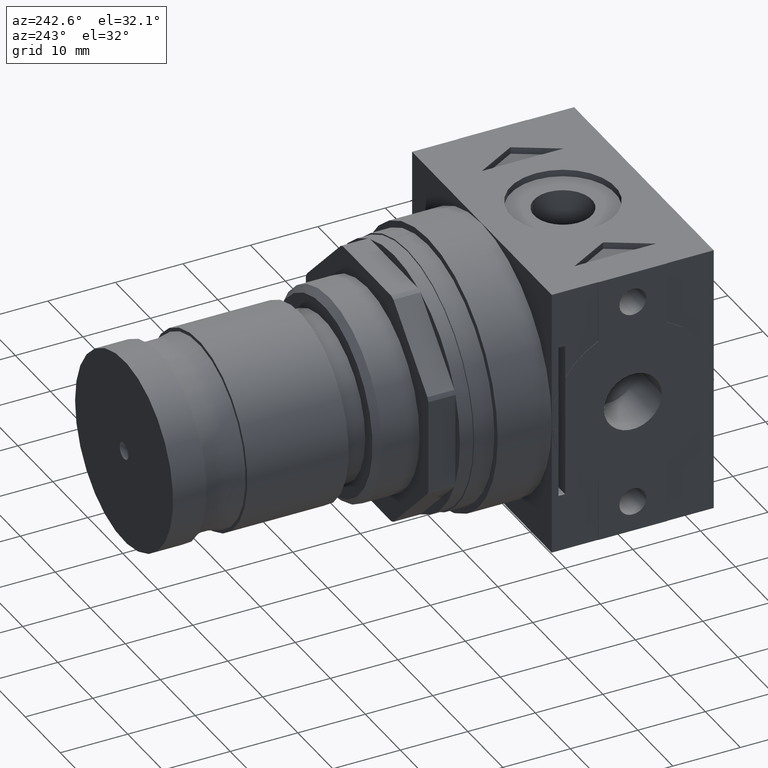
[diagram: clean part render]
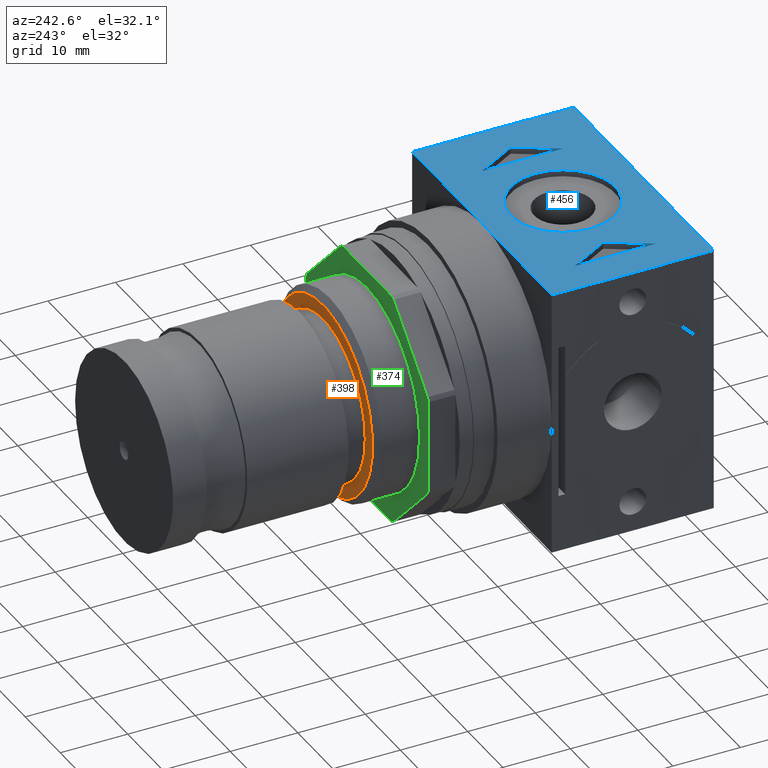
[diagram: same view with three faces highlighted in distinct colors, each labeled with its STEP entity id]
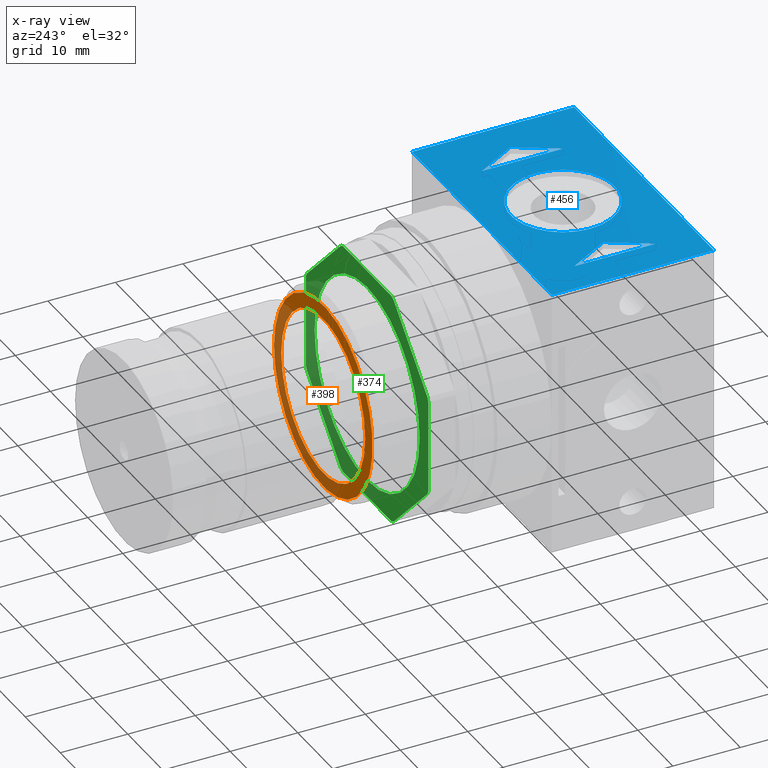
[diagram: x-ray of the same camera — body ghosted, the three highlighted faces saturated]
A machine part, auxiliary view with three faces highlighted in distinct colors.
The next image is the same camera in x-ray (body ghosted, the three faces saturated) — at least one of them is partly hidden behind the body in this view.
Their STEP definitions:

[orange] entity #398 — the highlighted planar face has unit normal (0, -1, 0).
#398 = ADVANCED_FACE( '', ( #818, #819 ), #820, .F. );
#818 = FACE_BOUND( '', #1263, .T. );
#819 = FACE_OUTER_BOUND( '', #1264, .T. );
#820 = PLANE( '', #1265 );
#1263 = EDGE_LOOP( '', ( #2135 ) );
#1264 = EDGE_LOOP( '', ( #2136 ) );
#1265 = AXIS2_PLACEMENT_3D( '', #2137, #2138, #2139 );
#2135 = ORIENTED_EDGE( '', *, *, #2577, .F. );
#2136 = ORIENTED_EDGE( '', *, *, #2758, .T. );
#2137 = CARTESIAN_POINT( '', ( 15.5000000000000, 14.0800000000000, 0.000000000000000 ) );
#2138 = DIRECTION( '', ( -1.00000000000000, 0.000000000000000, 0.000000000000000 ) );
#2139 = DIRECTION( '', ( 0.000000000000000, 0.000000000000000, 1.00000000000000 ) );
#2577 = EDGE_CURVE( '', #3074, #3074, #3075, .T. );
#2758 = EDGE_CURVE( '', #3329, #3329, #3330, .T. );
#3074 = VERTEX_POINT( '', #3726 );
#3075 = CIRCLE( '', #3727, 12.0000000000000 );
#3329 = VERTEX_POINT( '', #4072 );
#3330 = CIRCLE( '', #4073, 14.0800000000000 );
#3726 = CARTESIAN_POINT( '', ( 15.5000000000000, 0.000000000000000, -12.0000000000000 ) );
#3727 = AXIS2_PLACEMENT_3D( '', #4328, #4329, #4330 );
#4072 = CARTESIAN_POINT( '', ( 15.5000000000000, 0.000000000000000, -14.0800000000000 ) );
#4073 = AXIS2_PLACEMENT_3D( '', #4530, #4531, #4532 );
#4328 = CARTESIAN_POINT( '', ( 15.5000000000000, 0.000000000000000, 0.000000000000000 ) );
#4329 = DIRECTION( '', ( 1.00000000000000, 0.000000000000000, -0.000000000000000 ) );
#4330 = DIRECTION( '', ( -0.000000000000000, 0.000000000000000, -1.00000000000000 ) );
#4530 = CARTESIAN_POINT( '', ( 15.5000000000000, 0.000000000000000, 0.000000000000000 ) );
#4531 = DIRECTION( '', ( 1.00000000000000, 0.000000000000000, -0.000000000000000 ) );
#4532 = DIRECTION( '', ( -0.000000000000000, 0.000000000000000, -1.00000000000000 ) );

[blue] entity #456 — the highlighted planar face has unit normal (0, 0, -1).
#456 = ADVANCED_FACE( '', ( #918, #919, #920, #921 ), #922, .F. );
#918 = FACE_BOUND( '', #1363, .T. );
#919 = FACE_BOUND( '', #1364, .T. );
#920 = FACE_BOUND( '', #1365, .T. );
#921 = FACE_OUTER_BOUND( '', #1366, .T. );
#922 = PLANE( '', #1367 );
#1363 = EDGE_LOOP( '', ( #2372, #2373, #2374 ) );
#1364 = EDGE_LOOP( '', ( #2375, #2376, #2377 ) );
#1365 = EDGE_LOOP( '', ( #2378 ) );
#1366 = EDGE_LOOP( '', ( #2379, #2380, #2381, #2382, #2383, #2384, #2385, #2386, #2387, #2388, #2389, #2390 ) );
#1367 = AXIS2_PLACEMENT_3D( '', #2391, #2392, #2393 );
#2372 = ORIENTED_EDGE( '', *, *, #2669, .F. );
#2373 = ORIENTED_EDGE( '', *, *, #2527, .F. );
#2374 = ORIENTED_EDGE( '', *, *, #2710, .F. );
#2375 = ORIENTED_EDGE( '', *, *, #2459, .F. );
#2376 = ORIENTED_EDGE( '', *, *, #2675, .F. );
#2377 = ORIENTED_EDGE( '', *, *, #2499, .F. );
#2378 = ORIENTED_EDGE( '', *, *, #2610, .T. );
#2379 = ORIENTED_EDGE( '', *, *, #2536, .T. );
#2380 = ORIENTED_EDGE( '', *, *, #2477, .F. );
#2381 = ORIENTED_EDGE( '', *, *, #2755, .T. );
#2382 = ORIENTED_EDGE( '', *, *, #2791, .T. );
#2383 = ORIENTED_EDGE( '', *, *, #2542, .T. );
#2384 = ORIENTED_EDGE( '', *, *, #2692, .T. );
#2385 = ORIENTED_EDGE( '', *, *, #2533, .F. );
#2386 = ORIENTED_EDGE( '', *, *, #2608, .T. );
#2387 = ORIENTED_EDGE( '', *, *, #2742, .F. );
#2388 = ORIENTED_EDGE( '', *, *, #2434, .F. );
#2389 = ORIENTED_EDGE( '', *, *, #2704, .F. );
#2390 = ORIENTED_EDGE( '', *, *, #2648, .F. );
#2391 = CARTESIAN_POINT( '', ( 19.9500000000000, 12.0000000000000, 20.0000000000000 ) );
#2392 = DIRECTION( '', ( 0.000000000000000, 0.000000000000000, -1.00000000000000 ) );
#2393 = DIRECTION( '', ( -1.00000000000000, 0.000000000000000, 0.000000000000000 ) );
#2434 = EDGE_CURVE( '', #2836, #2838, #2839, .T. );
#2459 = EDGE_CURVE( '', #2880, #2881, #2882, .T. );
#2477 = EDGE_CURVE( '', #2911, #2913, #2914, .T. );
#2499 = EDGE_CURVE( '', #2881, #2947, #2948, .T. );
#2527 = EDGE_CURVE( '', #2994, #2995, #2996, .T. );
#2533 = EDGE_CURVE( '', #3003, #3005, #3006, .T. );
#2536 = EDGE_CURVE( '', #3009, #2913, #3010, .T. );
#2542 = EDGE_CURVE( '', #3018, #3019, #3020, .T. );
#2608 = EDGE_CURVE( '', #3003, #3127, #3129, .T. );
#2610 = EDGE_CURVE( '', #3131, #3131, #3132, .T. );
#2648 = EDGE_CURVE( '', #3009, #3184, #3185, .T. );
#2669 = EDGE_CURVE( '', #2995, #3216, #3217, .T. );
#2675 = EDGE_CURVE( '', #2947, #2880, #3223, .T. );
#2692 = EDGE_CURVE( '', #3019, #3005, #3247, .T. );
#2704 = EDGE_CURVE( '', #3184, #2836, #3262, .T. );
#2710 = EDGE_CURVE( '', #3216, #2994, #3268, .T. );
#2742 = EDGE_CURVE( '', #2838, #3127, #3310, .T. );
#2755 = EDGE_CURVE( '', #2911, #3324, #3326, .T. );
#2791 = EDGE_CURVE( '', #3324, #3018, #3366, .T. );
#2836 = VERTEX_POINT( '', #3414 );
#2838 = VERTEX_POINT( '', #3417 );
#2839 = LINE( '', #3418, #3419 );
#2880 = VERTEX_POINT( '', #3471 );
#2881 = VERTEX_POINT( '', #3472 );
#2882 = LINE( '', #3473, #3474 );
#2911 = VERTEX_POINT( '', #3515 );
#2913 = VERTEX_POINT( '', #3518 );
#2914 = LINE( '', #3519, #3520 );
#2947 = VERTEX_POINT( '', #3559 );
#2948 = LINE( '', #3560, #3561 );
#2994 = VERTEX_POINT( '', #3623 );
#2995 = VERTEX_POINT( '', #3624 );
#2996 = LINE( '', #3625, #3626 );
#3003 = VERTEX_POINT( '', #3636 );
#3005 = VERTEX_POINT( '', #3639 );
#3006 = LINE( '', #3640, #3641 );
#3009 = VERTEX_POINT( '', #3645 );
#3010 = LINE( '', #3646, #3647 );
#3018 = VERTEX_POINT( '', #3657 );
#3019 = VERTEX_POINT( '', #3658 );
#3020 = LINE( '', #3659, #3660 );
#3127 = VERTEX_POINT( '', #3791 );
#3129 = LINE( '', #3794, #3795 );
#3131 = VERTEX_POINT( '', #3797 );
#3132 = CIRCLE( '', #3798, 7.75000000000000 );
#3184 = VERTEX_POINT( '', #3869 );
#3185 = LINE( '', #3870, #3871 );
#3216 = VERTEX_POINT( '', #3910 );
#3217 = LINE( '', #3911, #3912 );
#3223 = LINE( '', #3921, #3922 );
#3247 = LINE( '', #3956, #3957 );
#3262 = LINE( '', #3978, #3979 );
#3268 = LINE( '', #3986, #3987 );
#3310 = LINE( '', #4046, #4047 );
#3324 = VERTEX_POINT( '', #4065 );
#3326 = LINE( '', #4068, #4069 );
#3366 = LINE( '', #4117, #4118 );
#3414 = CARTESIAN_POINT( '', ( 19.9500000000000, -5.10000000000000, 20.0000000000000 ) );
#3417 = CARTESIAN_POINT( '', ( 19.9500000000000, -12.0000000000000, 20.0000000000000 ) );
#3418 = CARTESIAN_POINT( '', ( 19.9500000000000, 12.0000000000000, 20.0000000000000 ) );
#3419 = VECTOR( '', #4159, 1000.00000000000 );
#3471 = CARTESIAN_POINT( '', ( -15.0000000000000, 6.06217782649107, 20.0000000000000 ) );
#3472 = CARTESIAN_POINT( '', ( -15.0000000000000, -6.06217782649107, 20.0000000000000 ) );
#3473 = CARTESIAN_POINT( '', ( -15.0000000000000, 6.06217782649107, 20.0000000000000 ) );
#3474 = VECTOR( '', #4192, 1000.00000000000 );
#3515 = CARTESIAN_POINT( '', ( 19.9500000000000, 12.0000000000000, 20.0000000000000 ) );
#3518 = CARTESIAN_POINT( '', ( 19.9500000000000, 5.10000000000000, 20.0000000000000 ) );
#3519 = CARTESIAN_POINT( '', ( 19.9500000000000, 12.0000000000000, 20.0000000000000 ) );
#3520 = VECTOR( '', #4209, 1000.00000000000 );
#3559 = CARTESIAN_POINT( '', ( -11.5000000000000, 0.000000000000000, 20.0000000000000 ) );
#3560 = CARTESIAN_POINT( '', ( -15.0000000000000, -6.06217782649107, 20.0000000000000 ) );
#3561 = VECTOR( '', #4240, 1000.00000000000 );
#3623 = CARTESIAN_POINT( '', ( 15.0000000000000, 0.000000000000000, 20.0000000000000 ) );
#3624 = CARTESIAN_POINT( '', ( 11.5000000000000, 6.06217782649107, 20.0000000000000 ) );
#3625 = CARTESIAN_POINT( '', ( 15.0000000000000, 0.000000000000000, 20.0000000000000 ) );
#3626 = VECTOR( '', #4269, 1000.00000000000 );
#3636 = CARTESIAN_POINT( '', ( -19.9500000000000, -5.10000000000000, 20.0000000000000 ) );
#3639 = CARTESIAN_POINT( '', ( -20.0000000000000, -5.10000000000000, 20.0000000000000 ) );
#3640 = CARTESIAN_POINT( '', ( 20.0000000000000, -5.10000000000000, 20.0000000000000 ) );
#3641 = VECTOR( '', #4274, 1000.00000000000 );
#3645 = CARTESIAN_POINT( '', ( 20.0000000000000, 5.10000000000000, 20.0000000000000 ) );
#3646 = CARTESIAN_POINT( '', ( 20.0000000000000, 5.10000000000000, 20.0000000000000 ) );
#3647 = VECTOR( '', #4276, 1000.00000000000 );
#3657 = CARTESIAN_POINT( '', ( -19.9500000000000, 5.10000000000000, 20.0000000000000 ) );
#3658 = CARTESIAN_POINT( '', ( -20.0000000000000, 5.10000000000000, 20.0000000000000 ) );
#3659 = CARTESIAN_POINT( '', ( 20.0000000000000, 5.10000000000000, 20.0000000000000 ) );
#3660 = VECTOR( '', #4282, 1000.00000000000 );
#3791 = CARTESIAN_POINT( '', ( -19.9500000000000, -12.0000000000000, 20.0000000000000 ) );
#3794 = CARTESIAN_POINT( '', ( -19.9500000000000, 12.0000000000000, 20.0000000000000 ) );
#3795 = VECTOR( '', #4389, 1000.00000000000 );
#3797 = CARTESIAN_POINT( '', ( -7.75000000000000, 0.000000000000000, 20.0000000000000 ) );
#3798 = AXIS2_PLACEMENT_3D( '', #4390, #4391, #4392 );
#3869 = CARTESIAN_POINT( '', ( 20.0000000000000, -5.10000000000000, 20.0000000000000 ) );
#3870 = CARTESIAN_POINT( '', ( 20.0000000000000, 5.10000000000000, 20.0000000000000 ) );
#3871 = VECTOR( '', #4427, 1000.00000000000 );
#3910 = CARTESIAN_POINT( '', ( 11.5000000000000, -6.06217782649107, 20.0000000000000 ) );
#3911 = CARTESIAN_POINT( '', ( 11.5000000000000, 6.06217782649107, 20.0000000000000 ) );
#3912 = VECTOR( '', #4454, 1000.00000000000 );
#3921 = CARTESIAN_POINT( '', ( -11.5000000000000, 0.000000000000000, 20.0000000000000 ) );
#3922 = VECTOR( '', #4458, 1000.00000000000 );
#3956 = CARTESIAN_POINT( '', ( -20.0000000000000, 5.10000000000000, 20.0000000000000 ) );
#3957 = VECTOR( '', #4475, 1000.00000000000 );
#3978 = CARTESIAN_POINT( '', ( 20.0000000000000, -5.10000000000000, 20.0000000000000 ) );
#3979 = VECTOR( '', #4485, 1000.00000000000 );
#3986 = CARTESIAN_POINT( '', ( 11.5000000000000, -6.06217782649107, 20.0000000000000 ) );
#3987 = VECTOR( '', #4487, 1000.00000000000 );
#4046 = CARTESIAN_POINT( '', ( 19.9500000000000, -12.0000000000000, 20.0000000000000 ) );
#4047 = VECTOR( '', #4517, 1000.00000000000 );
#4065 = CARTESIAN_POINT( '', ( -19.9500000000000, 12.0000000000000, 20.0000000000000 ) );
#4068 = CARTESIAN_POINT( '', ( 19.9500000000000, 12.0000000000000, 20.0000000000000 ) );
#4069 = VECTOR( '', #4529, 1000.00000000000 );
#4117 = CARTESIAN_POINT( '', ( -19.9500000000000, 12.0000000000000, 20.0000000000000 ) );
#4118 = VECTOR( '', #4553, 1000.00000000000 );
#4159 = DIRECTION( '', ( 0.000000000000000, -1.00000000000000, 0.000000000000000 ) );
#4192 = DIRECTION( '', ( 0.000000000000000, -1.00000000000000, 0.000000000000000 ) );
#4209 = DIRECTION( '', ( 0.000000000000000, -1.00000000000000, 0.000000000000000 ) );
#4240 = DIRECTION( '', ( 0.500000000000000, 0.866025403784439, 0.000000000000000 ) );
#4269 = DIRECTION( '', ( -0.500000000000000, 0.866025403784439, 0.000000000000000 ) );
#4274 = DIRECTION( '', ( -1.00000000000000, -0.000000000000000, -0.000000000000000 ) );
#4276 = DIRECTION( '', ( -1.00000000000000, -0.000000000000000, -0.000000000000000 ) );
#4282 = DIRECTION( '', ( -1.00000000000000, -0.000000000000000, -0.000000000000000 ) );
#4389 = DIRECTION( '', ( 0.000000000000000, -1.00000000000000, 0.000000000000000 ) );
#4390 = CARTESIAN_POINT( '', ( 0.000000000000000, 0.000000000000000, 20.0000000000000 ) );
#4391 = DIRECTION( '', ( -0.000000000000000, 0.000000000000000, -1.00000000000000 ) );
#4392 = DIRECTION( '', ( -1.00000000000000, 0.000000000000000, 0.000000000000000 ) );
#4427 = DIRECTION( '', ( 0.000000000000000, -1.00000000000000, 0.000000000000000 ) );
#4454 = DIRECTION( '', ( 0.000000000000000, -1.00000000000000, 0.000000000000000 ) );
#4458 = DIRECTION( '', ( -0.500000000000000, 0.866025403784439, 0.000000000000000 ) );
#4475 = DIRECTION( '', ( 0.000000000000000, -1.00000000000000, 0.000000000000000 ) );
#4485 = DIRECTION( '', ( -1.00000000000000, -0.000000000000000, -0.000000000000000 ) );
#4487 = DIRECTION( '', ( 0.500000000000000, 0.866025403784439, 0.000000000000000 ) );
#4517 = DIRECTION( '', ( -1.00000000000000, -0.000000000000000, -0.000000000000000 ) );
#4529 = DIRECTION( '', ( -1.00000000000000, -0.000000000000000, -0.000000000000000 ) );
#4553 = DIRECTION( '', ( 0.000000000000000, -1.00000000000000, 0.000000000000000 ) );

[green] entity #374 — the highlighted planar face has unit normal (0, -1, 0).
#374 = ADVANCED_FACE( '', ( #780, #781 ), #782, .F. );
#780 = FACE_BOUND( '', #1225, .T. );
#781 = FACE_OUTER_BOUND( '', #1226, .T. );
#782 = PLANE( '', #1227 );
#1225 = EDGE_LOOP( '', ( #2025 ) );
#1226 = EDGE_LOOP( '', ( #2026, #2027, #2028, #2029, #2030, #2031, #2032, #2033, #2034, #2035, #2036, #2037, #2038, #2039, #2040, #2041 ) );
#1227 = AXIS2_PLACEMENT_3D( '', #2042, #2043, #2044 );
#2025 = ORIENTED_EDGE( '', *, *, #2724, .F. );
#2026 = ORIENTED_EDGE( '', *, *, #2633, .F. );
#2027 = ORIENTED_EDGE( '', *, *, #2604, .T. );
#2028 = ORIENTED_EDGE( '', *, *, #2573, .F. );
#2029 = ORIENTED_EDGE( '', *, *, #2602, .T. );
#2030 = ORIENTED_EDGE( '', *, *, #2684, .F. );
#2031 = ORIENTED_EDGE( '', *, *, #2598, .T. );
#2032 = ORIENTED_EDGE( '', *, *, #2725, .F. );
#2033 = ORIENTED_EDGE( '', *, *, #2595, .T. );
#2034 = ORIENTED_EDGE( '', *, *, #2726, .F. );
#2035 = ORIENTED_EDGE( '', *, *, #2591, .T. );
#2036 = ORIENTED_EDGE( '', *, *, #2727, .F. );
#2037 = ORIENTED_EDGE( '', *, *, #2587, .T. );
#2038 = ORIENTED_EDGE( '', *, *, #2636, .F. );
#2039 = ORIENTED_EDGE( '', *, *, #2583, .T. );
#2040 = ORIENTED_EDGE( '', *, *, #2518, .F. );
#2041 = ORIENTED_EDGE( '', *, *, #2581, .T. );
#2042 = CARTESIAN_POINT( '', ( 9.00000000000000, 18.8000000000000, 0.000000000000000 ) );
#2043 = DIRECTION( '', ( -1.00000000000000, 0.000000000000000, 0.000000000000000 ) );
#2044 = DIRECTION( '', ( 0.000000000000000, 0.000000000000000, 1.00000000000000 ) );
#2518 = EDGE_CURVE( '', #2978, #2980, #2981, .T. );
#2573 = EDGE_CURVE( '', #3066, #3068, #3069, .T. );
#2581 = EDGE_CURVE( '', #2978, #3080, #3082, .T. );
#2583 = EDGE_CURVE( '', #3084, #2980, #3085, .T. );
#2587 = EDGE_CURVE( '', #3092, #3090, #3093, .T. );
#2591 = EDGE_CURVE( '', #3100, #3098, #3101, .T. );
#2595 = EDGE_CURVE( '', #3108, #3106, #3109, .T. );
#2598 = EDGE_CURVE( '', #3113, #3111, #3114, .T. );
#2602 = EDGE_CURVE( '', #3066, #3119, #3121, .T. );
#2604 = EDGE_CURVE( '', #3123, #3068, #3124, .T. );
#2633 = EDGE_CURVE( '', #3123, #3080, #3165, .T. );
#2636 = EDGE_CURVE( '', #3084, #3090, #3168, .T. );
#2684 = EDGE_CURVE( '', #3113, #3119, #3235, .T. );
#2724 = EDGE_CURVE( '', #3286, #3286, #3287, .T. );
#2725 = EDGE_CURVE( '', #3108, #3111, #3288, .T. );
#2726 = EDGE_CURVE( '', #3100, #3106, #3289, .T. );
#2727 = EDGE_CURVE( '', #3092, #3098, #3290, .T. );
#2978 = VERTEX_POINT( '', #3600 );
#2980 = VERTEX_POINT( '', #3603 );
#2981 = LINE( '', #3604, #3605 );
#3066 = VERTEX_POINT( '', #3714 );
#3068 = VERTEX_POINT( '', #3717 );
#3069 = LINE( '', #3718, #3719 );
#3080 = VERTEX_POINT( '', #3732 );
#3082 = CIRCLE( '', #3735, 18.8000000000000 );
#3084 = VERTEX_POINT( '', #3737 );
#3085 = CIRCLE( '', #3738, 18.8000000000000 );
#3090 = VERTEX_POINT( '', #3744 );
#3092 = VERTEX_POINT( '', #3747 );
#3093 = CIRCLE( '', #3748, 18.8000000000000 );
#3098 = VERTEX_POINT( '', #3754 );
#3100 = VERTEX_POINT( '', #3757 );
#3101 = CIRCLE( '', #3758, 18.8000000000000 );
#3106 = VERTEX_POINT( '', #3764 );
#3108 = VERTEX_POINT( '', #3767 );
#3109 = CIRCLE( '', #3768, 18.8000000000000 );
#3111 = VERTEX_POINT( '', #3771 );
#3113 = VERTEX_POINT( '', #3774 );
#3114 = CIRCLE( '', #3775, 18.8000000000000 );
#3119 = VERTEX_POINT( '', #3781 );
#3121 = CIRCLE( '', #3784, 18.8000000000000 );
#3123 = VERTEX_POINT( '', #3786 );
#3124 = CIRCLE( '', #3787, 18.8000000000000 );
#3165 = LINE( '', #3839, #3840 );
#3168 = LINE( '', #3844, #3845 );
#3235 = LINE( '', #3939, #3940 );
#3286 = VERTEX_POINT( '', #4012 );
#3287 = CIRCLE( '', #4013, 15.0000000000000 );
#3288 = LINE( '', #4014, #4015 );
#3289 = LINE( '', #4016, #4017 );
#3290 = LINE( '', #4018, #4019 );
#3600 = CARTESIAN_POINT( '', ( 9.00000000000000, 17.2318371472449, -7.51690019428427 ) );
#3603 = CARTESIAN_POINT( '', ( 9.00000000000000, 7.51690019428426, -17.2318371472449 ) );
#3604 = CARTESIAN_POINT( '', ( 9.00000000000000, 21.7743686707646, -2.97436867076458 ) );
#3605 = VECTOR( '', #4260, 1000.00000000000 );
#3714 = CARTESIAN_POINT( '', ( 9.00000000000000, 7.51690019428427, 17.2318371472449 ) );
#3717 = CARTESIAN_POINT( '', ( 9.00000000000000, 17.2318371472449, 7.51690019428425 ) );
#3718 = CARTESIAN_POINT( '', ( 9.00000000000000, 21.7743686707646, 2.97436867076457 ) );
#3719 = VECTOR( '', #4325, 1000.00000000000 );
#3732 = CARTESIAN_POINT( '', ( 9.00000000000000, 17.5000000000000, -6.86949779823825 ) );
#3735 = AXIS2_PLACEMENT_3D( '', #4335, #4336, #4337 );
#3737 = CARTESIAN_POINT( '', ( 9.00000000000000, 6.86949779823823, -17.5000000000000 ) );
#3738 = AXIS2_PLACEMENT_3D( '', #4341, #4342, #4343 );
#3744 = CARTESIAN_POINT( '', ( 9.00000000000000, -6.86949779823824, -17.5000000000000 ) );
#3747 = CARTESIAN_POINT( '', ( 9.00000000000000, -7.51690019428426, -17.2318371472449 ) );
#3748 = AXIS2_PLACEMENT_3D( '', #4349, #4350, #4351 );
#3754 = CARTESIAN_POINT( '', ( 9.00000000000000, -17.2318371472449, -7.51690019428426 ) );
#3757 = CARTESIAN_POINT( '', ( 9.00000000000000, -17.5000000000000, -6.86949779823824 ) );
#3758 = AXIS2_PLACEMENT_3D( '', #4357, #4358, #4359 );
#3764 = CARTESIAN_POINT( '', ( 9.00000000000000, -17.5000000000000, 6.86949779823825 ) );
#3767 = CARTESIAN_POINT( '', ( 9.00000000000000, -17.2318371472449, 7.51690019428426 ) );
#3768 = AXIS2_PLACEMENT_3D( '', #4365, #4366, #4367 );
#3771 = CARTESIAN_POINT( '', ( 9.00000000000000, -7.51690019428426, 17.2318371472449 ) );
#3774 = CARTESIAN_POINT( '', ( 9.00000000000000, -6.86949779823824, 17.5000000000000 ) );
#3775 = AXIS2_PLACEMENT_3D( '', #4370, #4371, #4372 );
#3781 = CARTESIAN_POINT( '', ( 9.00000000000000, 6.86949779823824, 17.5000000000000 ) );
#3784 = AXIS2_PLACEMENT_3D( '', #4378, #4379, #4380 );
#3786 = CARTESIAN_POINT( '', ( 9.00000000000000, 17.5000000000000, 6.86949779823823 ) );
#3787 = AXIS2_PLACEMENT_3D( '', #4384, #4385, #4386 );
#3839 = CARTESIAN_POINT( '', ( 9.00000000000000, 17.5000000000000, 6.22216094339575E-016 ) );
#3840 = VECTOR( '', #4416, 1000.00000000000 );
#3844 = CARTESIAN_POINT( '', ( 9.00000000000000, 18.8000000000000, -17.5000000000000 ) );
#3845 = VECTOR( '', #4418, 1000.00000000000 );
#3939 = CARTESIAN_POINT( '', ( 9.00000000000000, 18.8000000000000, 17.5000000000000 ) );
#3940 = VECTOR( '', #4464, 1000.00000000000 );
#4012 = CARTESIAN_POINT( '', ( 9.00000000000000, 0.000000000000000, -15.0000000000000 ) );
#4013 = AXIS2_PLACEMENT_3D( '', #4498, #4499, #4500 );
#4014 = CARTESIAN_POINT( '', ( 9.00000000000000, -2.97436867076458, 21.7743686707646 ) );
#4015 = VECTOR( '', #4501, 1000.00000000000 );
#4016 = CARTESIAN_POINT( '', ( 9.00000000000000, -17.5000000000000, 8.68709393251020E-015 ) );
#4017 = VECTOR( '', #4502, 1000.00000000000 );
#4018 = CARTESIAN_POINT( '', ( 9.00000000000000, -2.97436867076459, -21.7743686707646 ) );
#4019 = VECTOR( '', #4503, 1000.00000000000 );
#4260 = DIRECTION( '', ( 0.000000000000000, -0.707106781186548, -0.707106781186547 ) );
#4325 = DIRECTION( '', ( 0.000000000000000, 0.707106781186547, -0.707106781186548 ) );
#4335 = CARTESIAN_POINT( '', ( 9.00000000000000, 0.000000000000000, 0.000000000000000 ) );
#4336 = DIRECTION( '', ( 1.00000000000000, 0.000000000000000, -0.000000000000000 ) );
#4337 = DIRECTION( '', ( -0.000000000000000, 0.000000000000000, -1.00000000000000 ) );
#4341 = CARTESIAN_POINT( '', ( 9.00000000000000, 0.000000000000000, 0.000000000000000 ) );
#4342 = DIRECTION( '', ( 1.00000000000000, 0.000000000000000, -0.000000000000000 ) );
#4343 = DIRECTION( '', ( -0.000000000000000, 0.000000000000000, -1.00000000000000 ) );
#4349 = CARTESIAN_POINT( '', ( 9.00000000000000, 0.000000000000000, 0.000000000000000 ) );
#4350 = DIRECTION( '', ( 1.00000000000000, 0.000000000000000, -0.000000000000000 ) );
#4351 = DIRECTION( '', ( -0.000000000000000, 0.000000000000000, -1.00000000000000 ) );
#4357 = CARTESIAN_POINT( '', ( 9.00000000000000, 0.000000000000000, 0.000000000000000 ) );
#4358 = DIRECTION( '', ( 1.00000000000000, 0.000000000000000, -0.000000000000000 ) );
#4359 = DIRECTION( '', ( -0.000000000000000, 0.000000000000000, -1.00000000000000 ) );
#4365 = CARTESIAN_POINT( '', ( 9.00000000000000, 0.000000000000000, 0.000000000000000 ) );
#4366 = DIRECTION( '', ( 1.00000000000000, 0.000000000000000, -0.000000000000000 ) );
#4367 = DIRECTION( '', ( -0.000000000000000, 0.000000000000000, -1.00000000000000 ) );
#4370 = CARTESIAN_POINT( '', ( 9.00000000000000, 0.000000000000000, 0.000000000000000 ) );
#4371 = DIRECTION( '', ( 1.00000000000000, 0.000000000000000, -0.000000000000000 ) );
#4372 = DIRECTION( '', ( -0.000000000000000, 0.000000000000000, -1.00000000000000 ) );
#4378 = CARTESIAN_POINT( '', ( 9.00000000000000, 0.000000000000000, 0.000000000000000 ) );
#4379 = DIRECTION( '', ( 1.00000000000000, 0.000000000000000, -0.000000000000000 ) );
#4380 = DIRECTION( '', ( -0.000000000000000, 0.000000000000000, -1.00000000000000 ) );
#4384 = CARTESIAN_POINT( '', ( 9.00000000000000, 0.000000000000000, 0.000000000000000 ) );
#4385 = DIRECTION( '', ( 1.00000000000000, 0.000000000000000, -0.000000000000000 ) );
#4386 = DIRECTION( '', ( -0.000000000000000, 0.000000000000000, -1.00000000000000 ) );
#4416 = DIRECTION( '', ( 0.000000000000000, -4.78627764876595E-016, -1.00000000000000 ) );
#4418 = DIRECTION( '', ( 0.000000000000000, -1.00000000000000, 2.39313882438298E-016 ) );
#4464 = DIRECTION( '', ( 0.000000000000000, 1.00000000000000, 0.000000000000000 ) );
#4498 = CARTESIAN_POINT( '', ( 9.00000000000000, 0.000000000000000, 0.000000000000000 ) );
#4499 = DIRECTION( '', ( 1.00000000000000, 0.000000000000000, -0.000000000000000 ) );
#4500 = DIRECTION( '', ( -0.000000000000000, 0.000000000000000, -1.00000000000000 ) );
#4501 = DIRECTION( '', ( 0.000000000000000, 0.707106781186548, 0.707106781186547 ) );
#4502 = DIRECTION( '', ( 0.000000000000000, 2.39313882438298E-016, 1.00000000000000 ) );
#4503 = DIRECTION( '', ( 0.000000000000000, -0.707106781186547, 0.707106781186548 ) );